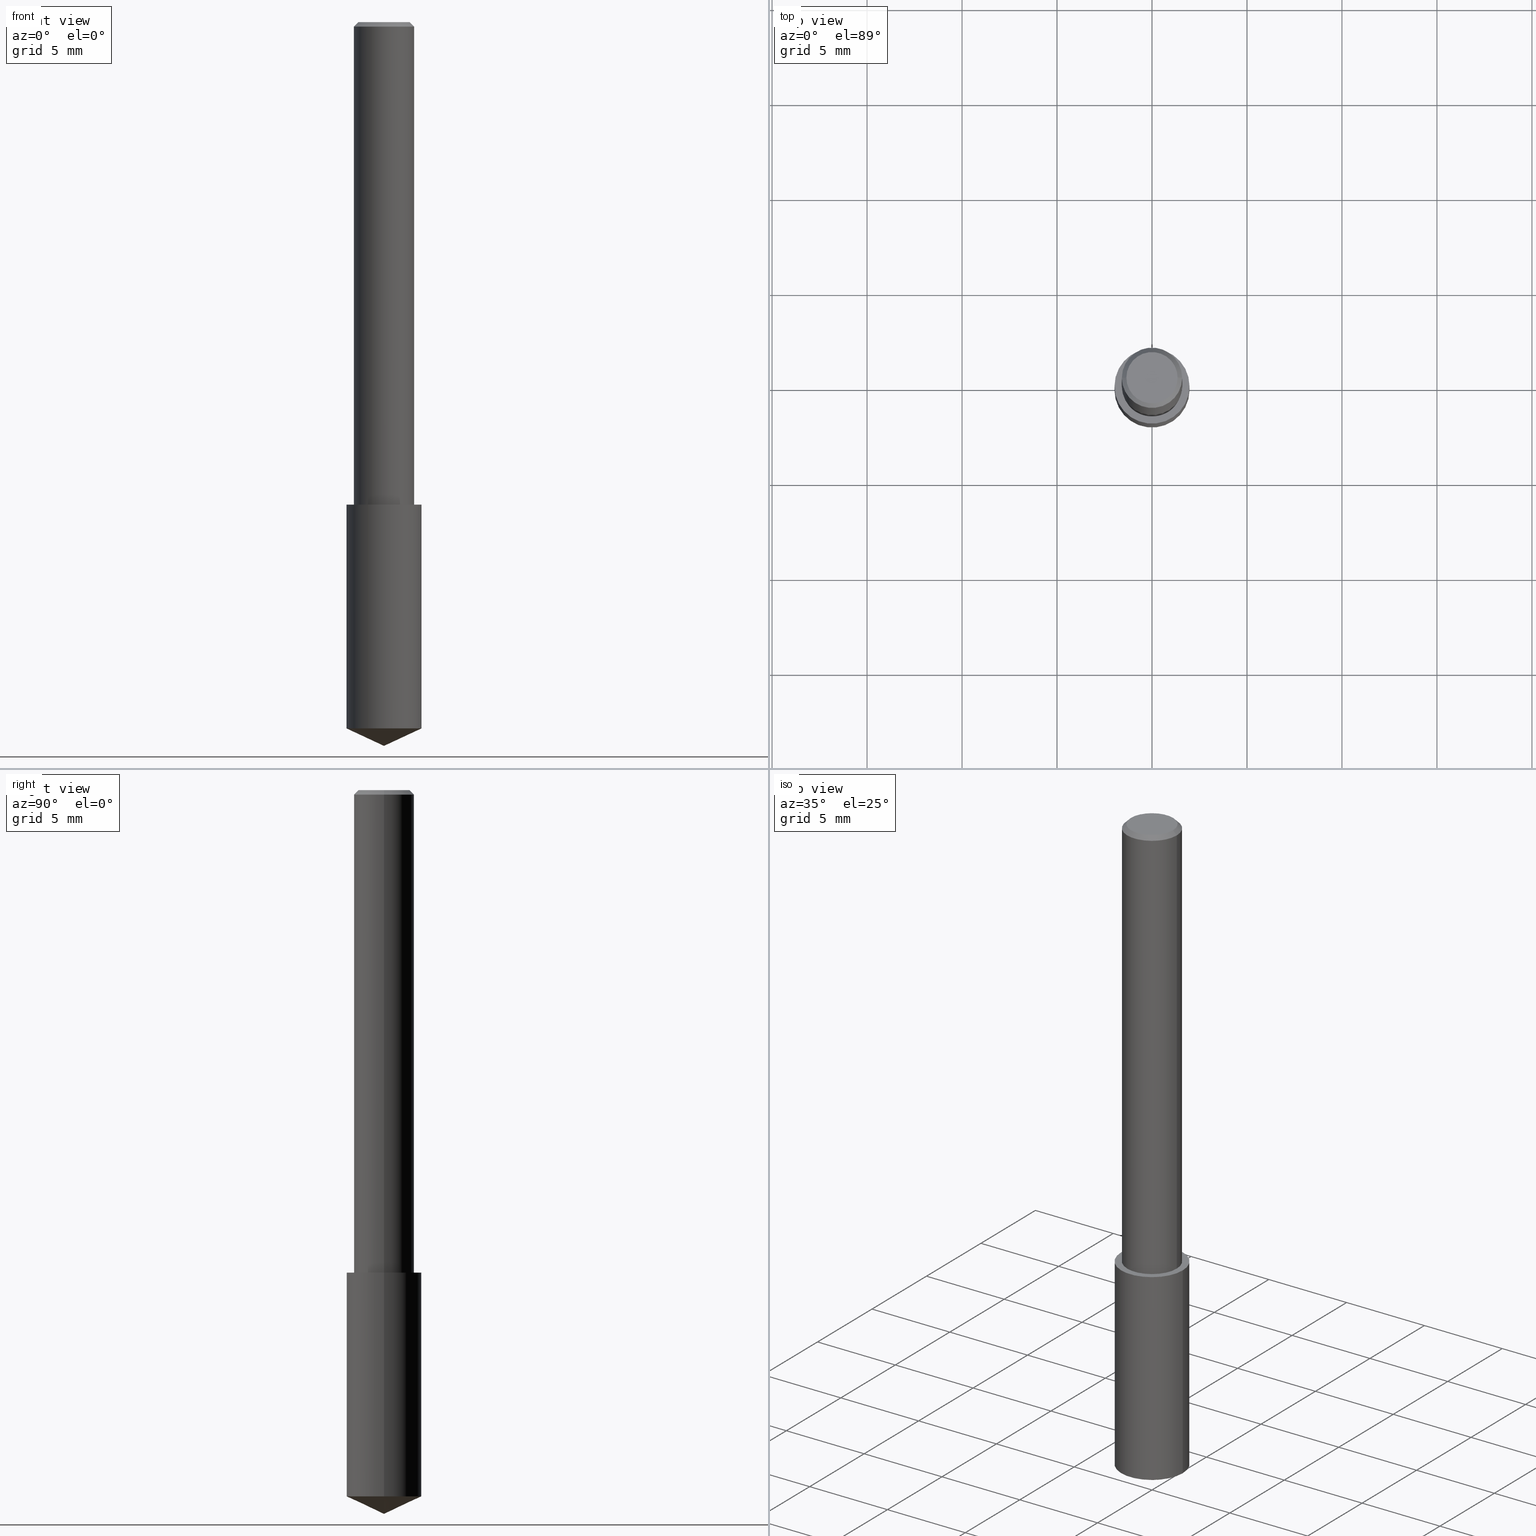
[diagram: canonical four-view strip — front | top / right | iso, engineering-drawing reading convention]
A machine part, canonical four-view strip (front | top / right | iso — engineering-drawing reading convention). The complete STEP part file that produces these views, byte-faithful:
ISO-10303-21;
HEADER;
FILE_DESCRIPTION (( 'STEP AP203' ),
    '1' );
FILE_NAME ('06093.STEP',
    '2024-04-30T18:20:10',
    ( '' ),
    ( '' ),
    'SwSTEP 2.0',
    'SolidWorks 2023',
    '' );
FILE_SCHEMA (( 'CONFIG_CONTROL_DESIGN' ));
ENDSEC;

DATA;
#1 = DIRECTION ( 'NONE',  ( -2.445468806185136597E-29, 3.491481338843145583E-15, 1.000000000000000000 ) ) ;
#2 = VERTEX_POINT ( 'NONE', #320 ) ;
#3 = DIRECTION ( 'NONE',  ( -2.445468806185136597E-29, 3.491481338843145583E-15, 1.000000000000000000 ) ) ;
#4 = CC_DESIGN_DATE_AND_TIME_ASSIGNMENT ( #259, #159, ( #295 ) ) ;
#5 = VECTOR ( 'NONE', #53, 39.37007874015748143 ) ;
#6 = APPROVAL_PERSON_ORGANIZATION ( #207, #228, #336 ) ;
#7 = CARTESIAN_POINT ( 'NONE',  ( 0.000000000000000000, 0.000000000000000000, 0.000000000000000000 ) ) ;
#8 = ORIENTED_EDGE ( 'NONE', *, *, #255, .T. ) ;
#9 = EDGE_LOOP ( 'NONE', ( #219, #215 ) ) ;
#10 = ORIENTED_EDGE ( 'NONE', *, *, #196, .F. ) ;
#11 = AXIS2_PLACEMENT_3D ( 'NONE', #206, #102, #314 ) ;
#12 = APPROVAL_DATE_TIME ( #276, #185 ) ;
#13 =( NAMED_UNIT ( * ) PLANE_ANGLE_UNIT ( ) SI_UNIT ( $, .RADIAN. ) );
#14 = PLANE ( 'NONE',  #42 ) ;
#15 = LENGTH_MEASURE_WITH_UNIT ( LENGTH_MEASURE( 0.02539999999999999897 ), #151 );
#16 = EDGE_LOOP ( 'NONE', ( #87, #261 ) ) ;
#17 = PERSON_AND_ORGANIZATION_ROLE ( 'design_owner' ) ;
#18 = DIRECTION ( 'NONE',  ( 1.000000000000000000, -6.982962677686261977E-15, 0.000000000000000000 ) ) ;
#19 = VERTEX_POINT ( 'NONE', #303 ) ;
#20 = CARTESIAN_POINT ( 'NONE',  ( 3.668203209277704895E-29, -5.237222008264718177E-15, -1.500000000000000222 ) ) ;
#21 = APPROVAL ( #97, 'UNSPECIFIED' ) ;
#22 = DIRECTION ( 'NONE',  ( -2.445468806185136877E-29, 3.491481338843145188E-15, 1.000000000000000000 ) ) ;
#23 = ORIENTED_EDGE ( 'NONE', *, *, #196, .T. ) ;
#24 = PERSON ( 'UNSPECIFIED', 'UNSPECIFIED', 'UNSPECIFIED', ('UNSPECIFIED'), ('UNSPECIFIED'), ('UNSPECIFIED') ) ;
#25 = PERSON_AND_ORGANIZATION ( #24, #127 ) ;
#26 = VECTOR ( 'NONE', #136, 39.37007874015748143 ) ;
#27 = LOCAL_TIME ( 14, 20, 10.00000000000000000, #231 ) ;
#28 = CARTESIAN_POINT ( 'NONE',  ( 0.06250000000000000000, -4.615137624123753937E-16, -0.009375000000000063838 ) ) ;
#29 = ORIENTED_EDGE ( 'NONE', *, *, #204, .T. ) ;
#30 = DIRECTION ( 'NONE',  ( 2.445468806185136597E-29, -3.491481338843145583E-15, -1.000000000000000000 ) ) ;
#31 = EDGE_CURVE ( 'NONE', #222, #270, #79, .T. ) ;
#32 = ORIENTED_EDGE ( 'NONE', *, *, #93, .T. ) ;
#33 = CARTESIAN_POINT ( 'NONE',  ( 0.07774999999999999967, -4.034406687033253308E-15, -1.000000000000000222 ) ) ;
#34 = CONICAL_SURFACE ( 'NONE', #11, 84.42940631927405093, 1.134464013796314674 ) ;
#35 = CARTESIAN_POINT ( 'NONE',  ( 2.445468806185137438E-29, -3.491481338843146371E-15, -1.000000000000000222 ) ) ;
#36 = ORIENTED_EDGE ( 'NONE', *, *, #244, .F. ) ;
#37 = EDGE_LOOP ( 'NONE', ( #103, #150, #316, #289 ) ) ;
#38 = ORIENTED_EDGE ( 'NONE', *, *, #246, .T. ) ;
#39 = APPROVAL_DATE_TIME ( #71, #21 ) ;
#40 = ADVANCED_FACE ( 'NONE', ( #82 ), #170, .T. ) ;
#41 = ADVANCED_FACE ( 'NONE', ( #192 ), #14, .F. ) ;
#42 = AXIS2_PLACEMENT_3D ( 'NONE', #116, #297, #59 ) ;
#43 = UNCERTAINTY_MEASURE_WITH_UNIT (LENGTH_MEASURE( 1.000000000000000082E-05 ), #277, 'distance_accuracy_value', 'NONE');
#44 = ORIENTED_EDGE ( 'NONE', *, *, #244, .T. ) ;
#45 = LINE ( 'NONE', #205, #126 ) ;
#46 = ADVANCED_FACE ( 'NONE', ( #62 ), #267, .T. ) ;
#47 = CALENDAR_DATE ( 2024, 30, 4 ) ;
#48 = PLANE ( 'NONE',  #248 ) ;
#49 = CONICAL_SURFACE ( 'NONE', #304, 0.06250000000000000000, 0.7853981633974450594 ) ;
#50 = EDGE_CURVE ( 'NONE', #299, #197, #232, .T. ) ;
#51 = CARTESIAN_POINT ( 'NONE',  ( -0.06250000000000012490, -1.318017778347335489E-15, -1.000000000000000222 ) ) ;
#52 = DIRECTION ( 'NONE',  ( 1.000000000000000000, -6.982962677686265922E-15, 4.876176775795935793E-29 ) ) ;
#53 = DIRECTION ( 'NONE',  ( -2.445468806185136877E-29, 3.491481338843145188E-15, 1.000000000000000000 ) ) ;
#54 = PERSON_AND_ORGANIZATION_ROLE ( 'creator' ) ;
#55 = DIRECTION ( 'NONE',  ( -2.445468806185136877E-29, 3.491481338843145188E-15, 1.000000000000000000 ) ) ;
#56 = EDGE_CURVE ( 'NONE', #218, #222, #302, .T. ) ;
#57 = CC_DESIGN_DATE_AND_TIME_ASSIGNMENT ( #96, #309, ( #273 ) ) ;
#58 = EDGE_LOOP ( 'NONE', ( #235, #251, #305 ) ) ;
#59 = DIRECTION ( 'NONE',  ( -1.000000000000000000, 6.982962677686265922E-15, -4.876176775795935793E-29 ) ) ;
#60 = MANIFOLD_SOLID_BREP ( 'Body-Move/Copy2[1]', #161 ) ;
#61 = AXIS2_PLACEMENT_3D ( 'NONE', #67, #331, #64 ) ;
#62 = FACE_OUTER_BOUND ( 'NONE', #315, .T. ) ;
#63 = CARTESIAN_POINT ( 'NONE',  ( 3.668203209277704895E-29, -5.237222008264718177E-15, -1.500000000000000222 ) ) ;
#64 = DIRECTION ( 'NONE',  ( 1.000000000000000000, -6.982962677686261977E-15, 0.000000000000000000 ) ) ;
#65 = ADVANCED_FACE ( 'NONE', ( #229 ), #313, .T. ) ;
#66 = APPROVAL_ROLE ( '' ) ;
#67 = CARTESIAN_POINT ( 'NONE',  ( 3.579541709581674461E-29, -5.110636884430960237E-15, -1.463744579578448946 ) ) ;
#68 = DIRECTION ( 'NONE',  ( -0.9063077870366501587, 7.915267918739016209E-15, 0.4226182617406989972 ) ) ;
#69 = AXIS2_PLACEMENT_3D ( 'NONE', #73, #72, #128 ) ;
#70 = PERSON_AND_ORGANIZATION ( #24, #127 ) ;
#71 = DATE_AND_TIME ( #198, #92 ) ;
#72 = DIRECTION ( 'NONE',  ( 2.438088387897960049E-29, -3.491481338843145188E-15, -1.000000000000000000 ) ) ;
#73 = CARTESIAN_POINT ( 'NONE',  ( -3.743544432386672853E-50, 5.344789307371238476E-36, 1.530808498934197599E-21 ) ) ;
#74 = CARTESIAN_POINT ( 'NONE',  ( 0.000000000000000000, 0.000000000000000000, 0.000000000000000000 ) ) ;
#75 = CIRCLE ( 'NONE', #269, 0.06250000000000000000 ) ;
#76 = PERSON_AND_ORGANIZATION ( #24, #127 ) ;
#77 = EDGE_CURVE ( 'NONE', #240, #137, #45, .T. ) ;
#78 = CALENDAR_DATE ( 2024, 30, 4 ) ;
#79 = CIRCLE ( 'NONE', #61, 0.07774999999999999967 ) ;
#80 = LOCAL_TIME ( 14, 20, 10.00000000000000000, #132 ) ;
#81 = CARTESIAN_POINT ( 'NONE',  ( 2.445468806185136877E-29, -3.491481338843145977E-15, -1.000000000000000222 ) ) ;
#82 = FACE_OUTER_BOUND ( 'NONE', #37, .T. ) ;
#83 = DIRECTION ( 'NONE',  ( 1.000000000000000000, -6.982962677686266711E-15, 0.000000000000000000 ) ) ;
#84 = EDGE_LOOP ( 'NONE', ( #236, #123, #38, #322 ) ) ;
#85 = DIRECTION ( 'NONE',  ( 1.000000000000000000, -6.982962677686266711E-15, 4.876176628004948512E-29 ) ) ;
#86 = VECTOR ( 'NONE', #68, 39.37007874015748143 ) ;
#87 = ORIENTED_EDGE ( 'NONE', *, *, #50, .F. ) ;
#88 = ADVANCED_FACE ( 'NONE', ( #285 ), #311, .T. ) ;
#89 = ORIENTED_EDGE ( 'NONE', *, *, #307, .F. ) ;
#90 = PERSON_AND_ORGANIZATION ( #24, #127 ) ;
#91 = APPLICATION_CONTEXT ( 'configuration controlled 3d designs of mechanical parts and assemblies' ) ;
#92 = LOCAL_TIME ( 14, 20, 10.00000000000000000, #121 ) ;
#93 = EDGE_CURVE ( 'NONE', #222, #2, #175, .T. ) ;
#94 = DIRECTION ( 'NONE',  ( -2.445468806185136597E-29, 3.491481338843145583E-15, 1.000000000000000000 ) ) ;
#95 = CARTESIAN_POINT ( 'NONE',  ( 0.000000000000000000, 0.000000000000000000, 0.000000000000000000 ) ) ;
#96 = DATE_AND_TIME ( #332, #155 ) ;
#97 = APPROVAL_STATUS ( 'not_yet_approved' ) ;
#98 = FACE_OUTER_BOUND ( 'NONE', #16, .T. ) ;
#99 = AXIS2_PLACEMENT_3D ( 'NONE', #117, #323, #195 ) ;
#100 = APPROVAL_PERSON_ORGANIZATION ( #275, #21, #274 ) ;
#101 = CC_DESIGN_PERSON_AND_ORGANIZATION_ASSIGNMENT ( #146, #284, ( #295 ) ) ;
#102 = DIRECTION ( 'NONE',  ( -2.445468806185136597E-29, 3.491481338843145583E-15, 1.000000000000000000 ) ) ;
#103 = ORIENTED_EDGE ( 'NONE', *, *, #93, .F. ) ;
#104 = LINE ( 'NONE', #290, #5 ) ;
#105 = CIRCLE ( 'NONE', #292, 0.05312499999999999861 ) ;
#106 = CONICAL_SURFACE ( 'NONE', #286, 0.06250000000000000000, 0.7853981633974450594 ) ;
#107 = APPROVAL_DATE_TIME ( #340, #228 ) ;
#108 = CARTESIAN_POINT ( 'NONE',  ( 0.06250000000000000000, -4.691678049070463404E-16, -0.009375000000000063838 ) ) ;
#109 = PERSON_AND_ORGANIZATION_ROLE ( 'design_supplier' ) ;
#110 = PRODUCT ( '06093', '06093', '', ( #306 ) ) ;
#111 = CARTESIAN_POINT ( 'NONE',  ( 2.292627005798581061E-31, -3.273263755165471417E-17, -0.009375000000000063838 ) ) ;
#112 = CARTESIAN_POINT ( 'NONE',  ( -0.07775000000000001354, -4.558189907377482443E-15, -1.463744579578448946 ) ) ;
#113 = AXIS2_PLACEMENT_3D ( 'NONE', #81, #339, #114 ) ;
#114 = DIRECTION ( 'NONE',  ( 1.000000000000000000, -6.982962677686266711E-15, 0.000000000000000000 ) ) ;
#115 = PRODUCT_RELATED_PRODUCT_CATEGORY ( 'detail', '', ( #110 ) ) ;
#116 = CARTESIAN_POINT ( 'NONE',  ( 3.672246464118877358E-29, -1.734665908833973445E-15, -1.000000000000000222 ) ) ;
#117 = CARTESIAN_POINT ( 'NONE',  ( 2.445468806185137438E-29, -3.491481338843146371E-15, -1.000000000000000222 ) ) ;
#118 = AXIS2_PLACEMENT_3D ( 'NONE', #95, #224, #333 ) ;
#119 = EDGE_LOOP ( 'NONE', ( #263, #143 ) ) ;
#120 = CC_DESIGN_PERSON_AND_ORGANIZATION_ASSIGNMENT ( #253, #249, ( #273 ) ) ;
#121 = COORDINATED_UNIVERSAL_TIME_OFFSET ( 5, 0, .BEHIND. ) ;
#122 = ORIENTED_EDGE ( 'NONE', *, *, #50, .T. ) ;
#123 = ORIENTED_EDGE ( 'NONE', *, *, #327, .T. ) ;
#124 = APPLICATION_PROTOCOL_DEFINITION ( 'international standard', 'config_control_design', 1994, #213 ) ;
#125 = CARTESIAN_POINT ( 'NONE',  ( -0.06250000000000000000, -1.318017778347336672E-15, -0.009375000000000063838 ) ) ;
#126 = VECTOR ( 'NONE', #177, 39.37007874015748143 ) ;
#127 = ORGANIZATION ( 'UNSPECIFIED', 'UNSPECIFIED', '' ) ;
#128 = DIRECTION ( 'NONE',  ( -1.000000000000000000, 6.982962677686265922E-15, -4.876176775795935793E-29 ) ) ;
#129 = FACE_OUTER_BOUND ( 'NONE', #338, .T. ) ;
#130 = DIRECTION ( 'NONE',  ( 0.9063077870366501587, -4.853149677051382734E-15, 0.4226182617406989972 ) ) ;
#131 = APPROVAL_STATUS ( 'not_yet_approved' ) ;
#132 = COORDINATED_UNIVERSAL_TIME_OFFSET ( 5, 0, .BEHIND. ) ;
#133 = DIRECTION ( 'NONE',  ( -2.445468806185136597E-29, 3.491481338843145583E-15, 1.000000000000000000 ) ) ;
#134 = CARTESIAN_POINT ( 'NONE',  ( 0.06250000000000006939, -4.364351673553921624E-16, 3.047610484872463374E-30 ) ) ;
#135 = LOCAL_TIME ( 14, 20, 10.00000000000000000, #283 ) ;
#136 = DIRECTION ( 'NONE',  ( 0.7071067811865452413, -7.319954787623248157E-15, -0.7071067811865497932 ) ) ;
#137 = VERTEX_POINT ( 'NONE', #125 ) ;
#138 = CYLINDRICAL_SURFACE ( 'NONE', #254, 0.06250000000000006939 ) ;
#139 = AXIS2_PLACEMENT_3D ( 'NONE', #158, #258, #326 ) ;
#140 = DIRECTION ( 'NONE',  ( -2.445468806185136597E-29, 3.491481338843145583E-15, 1.000000000000000000 ) ) ;
#141 = ORIENTED_EDGE ( 'NONE', *, *, #56, .T. ) ;
#142 = ADVANCED_FACE ( 'NONE', ( #279 ), #106, .T. ) ;
#143 = ORIENTED_EDGE ( 'NONE', *, *, #330, .T. ) ;
#144 = AXIS2_PLACEMENT_3D ( 'NONE', #214, #293, #83 ) ;
#145 = CARTESIAN_POINT ( 'NONE',  ( 2.445468806185137438E-29, -3.491481338843146371E-15, -1.000000000000000222 ) ) ;
#146 = PERSON_AND_ORGANIZATION ( #24, #127 ) ;
#147 = COORDINATED_UNIVERSAL_TIME_OFFSET ( 5, 0, .BEHIND. ) ;
#148 = ADVANCED_FACE ( 'NONE', ( #288 ), #281, .F. ) ;
#149 = CC_DESIGN_APPROVAL ( #228, ( #262 ) ) ;
#150 = ORIENTED_EDGE ( 'NONE', *, *, #31, .T. ) ;
#151 =( LENGTH_UNIT ( ) NAMED_UNIT ( * ) SI_UNIT ( $, .METRE. ) );
#152 = CARTESIAN_POINT ( 'NONE',  ( 2.445468806185137438E-29, -3.491481338843146371E-15, -1.000000000000000222 ) ) ;
#153 = ADVANCED_FACE ( 'NONE', ( #129 ), #34, .T. ) ;
#154 = VECTOR ( 'NONE', #130, 39.37007874015748143 ) ;
#155 = LOCAL_TIME ( 14, 20, 10.00000000000000000, #147 ) ;
#156 = DIRECTION ( 'NONE',  ( 1.000000000000000000, -6.982962677686266711E-15, 4.876176628004948512E-29 ) ) ;
#157 = CARTESIAN_POINT ( 'NONE',  ( 3.579541709581674461E-29, -5.110636884430960237E-15, -1.463744579578448946 ) ) ;
#158 = CARTESIAN_POINT ( 'NONE',  ( 2.445468806185137438E-29, -3.491481338843146371E-15, -1.000000000000000222 ) ) ;
#159 = DATE_TIME_ROLE ( 'creation_date' ) ;
#160 = LINE ( 'NONE', #28, #26 ) ;
#161 = CLOSED_SHELL ( 'NONE', ( #46, #153, #65, #40, #41 ) ) ;
#162 = CC_DESIGN_APPROVAL ( #21, ( #295 ) ) ;
#163 = LINE ( 'NONE', #134, #335 ) ;
#164 = ORIENTED_EDGE ( 'NONE', *, *, #77, .F. ) ;
#165 = CARTESIAN_POINT ( 'NONE',  ( 3.668203209277704895E-29, -5.237222008264718177E-15, -1.500000000000000222 ) ) ;
#166 = ORIENTED_EDGE ( 'NONE', *, *, #210, .T. ) ;
#167 = DIRECTION ( 'NONE',  ( 1.000000000000000000, -6.982962677686266711E-15, 0.000000000000000000 ) ) ;
#168 = ADVANCED_BREP_SHAPE_REPRESENTATION ( '06093', ( #60, #280, #118 ), #189 ) ;
#169 = ORIENTED_EDGE ( 'NONE', *, *, #255, .F. ) ;
#170 = CYLINDRICAL_SURFACE ( 'NONE', #194, 0.07774999999999999967 ) ;
#171 = CIRCLE ( 'NONE', #144, 0.06250000000000000000 ) ;
#172 = CC_DESIGN_PERSON_AND_ORGANIZATION_ASSIGNMENT ( #25, #109, ( #262 ) ) ;
#173 = ORIENTED_EDGE ( 'NONE', *, *, #242, .F. ) ;
#174 = AXIS2_PLACEMENT_3D ( 'NONE', #157, #133, #18 ) ;
#175 = LINE ( 'NONE', #334, #221 ) ;
#176 = APPLICATION_PROTOCOL_DEFINITION ( 'international standard', 'config_control_design', 1994, #91 ) ;
#177 = DIRECTION ( 'NONE',  ( -0.7071067811865452413, 2.468850131082233000E-15, -0.7071067811865497932 ) ) ;
#178 = APPROVAL_STATUS ( 'not_yet_approved' ) ;
#179 = DIMENSIONAL_EXPONENTS ( 1.000000000000000000, 0.000000000000000000, 0.000000000000000000, 0.000000000000000000, 0.000000000000000000, 0.000000000000000000, 0.000000000000000000 ) ;
#180 = CALENDAR_DATE ( 2024, 30, 4 ) ;
#181 = DIRECTION ( 'NONE',  ( -1.000000000000000000, 6.982962677686266711E-15, 0.000000000000000000 ) ) ;
#182 = AXIS2_PLACEMENT_3D ( 'NONE', #268, #216, #85 ) ;
#183 = CC_DESIGN_APPROVAL ( #185, ( #273 ) ) ;
#184 = DIRECTION ( 'NONE',  ( 2.445468806185136597E-29, -3.491481338843145583E-15, -1.000000000000000000 ) ) ;
#185 = APPROVAL ( #178, 'UNSPECIFIED' ) ;
#186 = DIRECTION ( 'NONE',  ( 1.000000000000000000, -6.982962677686266711E-15, 0.000000000000000000 ) ) ;
#187 = ADVANCED_FACE ( 'NONE', ( #98 ), #48, .F. ) ;
#188 = AXIS2_PLACEMENT_3D ( 'NONE', #74, #310, #225 ) ;
#189 =( GEOMETRIC_REPRESENTATION_CONTEXT ( 3 ) GLOBAL_UNCERTAINTY_ASSIGNED_CONTEXT ( ( #43 ) ) GLOBAL_UNIT_ASSIGNED_CONTEXT ( ( #277, #13, #245 ) ) REPRESENTATION_CONTEXT ( 'NONE', 'WORKASPACE' ) );
#190 = FACE_OUTER_BOUND ( 'NONE', #325, .T. ) ;
#191 = LINE ( 'NONE', #317, #260 ) ;
#192 = FACE_OUTER_BOUND ( 'NONE', #9, .T. ) ;
#193 = ORIENTED_EDGE ( 'NONE', *, *, #246, .F. ) ;
#194 = AXIS2_PLACEMENT_3D ( 'NONE', #145, #94, #243 ) ;
#195 = DIRECTION ( 'NONE',  ( 1.000000000000000000, -6.982962677686264344E-15, 0.000000000000000000 ) ) ;
#196 = EDGE_CURVE ( 'NONE', #270, #222, #247, .T. ) ;
#197 = VERTEX_POINT ( 'NONE', #51 ) ;
#198 = CALENDAR_DATE ( 2024, 30, 4 ) ;
#199 = CIRCLE ( 'NONE', #139, 0.06250000000000012490 ) ;
#200 = CC_DESIGN_SECURITY_CLASSIFICATION ( #273, ( #262 ) ) ;
#201 = EDGE_CURVE ( 'NONE', #240, #19, #105, .T. ) ;
#202 = ORIENTED_EDGE ( 'NONE', *, *, #330, .F. ) ;
#203 = AXIS2_PLACEMENT_3D ( 'NONE', #298, #230, #186 ) ;
#204 = EDGE_CURVE ( 'NONE', #197, #137, #191, .T. ) ;
#205 = CARTESIAN_POINT ( 'NONE',  ( -0.06250000000000000000, 4.037025298037369984E-16, -0.009375000000000063838 ) ) ;
#206 = CARTESIAN_POINT ( 'NONE',  ( -9.261009624683002666E-28, 1.322226732217803884E-13, 37.87007874015748143 ) ) ;
#207 = PERSON_AND_ORGANIZATION ( #24, #127 ) ;
#208 = CLOSED_SHELL ( 'NONE', ( #291, #282, #187, #88, #142, #148 ) ) ;
#209 = DIRECTION ( 'NONE',  ( 1.000000000000000000, -6.982962677686266711E-15, 0.000000000000000000 ) ) ;
#210 = EDGE_CURVE ( 'NONE', #137, #265, #75, .T. ) ;
#211 = DIRECTION ( 'NONE',  ( -2.445468806185136597E-29, 3.491481338843145583E-15, 1.000000000000000000 ) ) ;
#212 = SECURITY_CLASSIFICATION_LEVEL ( 'unclassified' ) ;
#213 = APPLICATION_CONTEXT ( 'configuration controlled 3d designs of mechanical parts and assemblies' ) ;
#214 = CARTESIAN_POINT ( 'NONE',  ( 2.292627005798581061E-31, -3.273263755165471417E-17, -0.009375000000000063838 ) ) ;
#215 = ORIENTED_EDGE ( 'NONE', *, *, #301, .T. ) ;
#216 = DIRECTION ( 'NONE',  ( -2.445468806185136597E-29, 3.491481338843145583E-15, 1.000000000000000000 ) ) ;
#217 = CC_DESIGN_PERSON_AND_ORGANIZATION_ASSIGNMENT ( #90, #17, ( #110 ) ) ;
#218 = VERTEX_POINT ( 'NONE', #165 ) ;
#219 = ORIENTED_EDGE ( 'NONE', *, *, #242, .T. ) ;
#220 = SHAPE_DEFINITION_REPRESENTATION ( #328, #168 ) ;
#221 = VECTOR ( 'NONE', #22, 39.37007874015748143 ) ;
#222 = VERTEX_POINT ( 'NONE', #112 ) ;
#223 = CC_DESIGN_PERSON_AND_ORGANIZATION_ASSIGNMENT ( #76, #54, ( #262 ) ) ;
#224 = DIRECTION ( 'NONE',  ( 0.000000000000000000, 0.000000000000000000, 1.000000000000000000 ) ) ;
#225 = DIRECTION ( 'NONE',  ( 1.000000000000000000, -6.982962677686266711E-15, 4.876176775795935793E-29 ) ) ;
#226 = CIRCLE ( 'NONE', #203, 0.07774999999999999967 ) ;
#227 = DIRECTION ( 'NONE',  ( 1.000000000000000000, -6.982962677686266711E-15, 0.000000000000000000 ) ) ;
#228 = APPROVAL ( #131, 'UNSPECIFIED' ) ;
#229 = FACE_OUTER_BOUND ( 'NONE', #58, .T. ) ;
#230 = DIRECTION ( 'NONE',  ( -2.445468806185136597E-29, 3.491481338843145583E-15, 1.000000000000000000 ) ) ;
#231 = COORDINATED_UNIVERSAL_TIME_OFFSET ( 5, 0, .BEHIND. ) ;
#232 = CIRCLE ( 'NONE', #99, 0.06250000000000012490 ) ;
#233 = CARTESIAN_POINT ( 'NONE',  ( -7.487088864773345706E-50, 1.068957861474247695E-35, 3.061616997868395197E-21 ) ) ;
#234 = ORIENTED_EDGE ( 'NONE', *, *, #201, .F. ) ;
#235 = ORIENTED_EDGE ( 'NONE', *, *, #56, .F. ) ;
#236 = ORIENTED_EDGE ( 'NONE', *, *, #204, .F. ) ;
#237 = DIRECTION ( 'NONE',  ( -1.000000000000000000, 6.982962677686266711E-15, 0.000000000000000000 ) ) ;
#238 = AXIS2_PLACEMENT_3D ( 'NONE', #35, #140, #167 ) ;
#239 = EDGE_LOOP ( 'NONE', ( #122, #29, #36, #193 ) ) ;
#240 = VERTEX_POINT ( 'NONE', #266 ) ;
#241 = VERTEX_POINT ( 'NONE', #33 ) ;
#242 = EDGE_CURVE ( 'NONE', #241, #2, #226, .T. ) ;
#243 = DIRECTION ( 'NONE',  ( 1.000000000000000000, -6.982962677686266711E-15, 0.000000000000000000 ) ) ;
#244 = EDGE_CURVE ( 'NONE', #265, #137, #171, .T. ) ;
#245 =( NAMED_UNIT ( * ) SI_UNIT ( $, .STERADIAN. ) SOLID_ANGLE_UNIT ( ) );
#246 = EDGE_CURVE ( 'NONE', #299, #265, #163, .T. ) ;
#247 = CIRCLE ( 'NONE', #174, 0.07774999999999999967 ) ;
#248 = AXIS2_PLACEMENT_3D ( 'NONE', #152, #252, #52 ) ;
#249 = PERSON_AND_ORGANIZATION_ROLE ( 'classification_officer' ) ;
#250 = DESIGN_CONTEXT ( 'detailed design', #213, 'design' ) ;
#251 = ORIENTED_EDGE ( 'NONE', *, *, #307, .T. ) ;
#252 = DIRECTION ( 'NONE',  ( -2.438088387897960049E-29, 3.491481338843145188E-15, 1.000000000000000000 ) ) ;
#253 = PERSON_AND_ORGANIZATION ( #24, #127 ) ;
#254 = AXIS2_PLACEMENT_3D ( 'NONE', #7, #3, #256 ) ;
#255 = EDGE_CURVE ( 'NONE', #19, #265, #160, .T. ) ;
#256 = DIRECTION ( 'NONE',  ( 1.000000000000000000, -6.982962677686266711E-15, 4.876176775795935793E-29 ) ) ;
#257 = CARTESIAN_POINT ( 'NONE',  ( 2.292627005798581061E-31, -3.273263755165471417E-17, -0.009375000000000063838 ) ) ;
#258 = DIRECTION ( 'NONE',  ( -2.445468806185136597E-29, 3.491481338843145583E-15, 1.000000000000000000 ) ) ;
#259 = DATE_AND_TIME ( #180, #80 ) ;
#260 = VECTOR ( 'NONE', #318, 39.37007874015748143 ) ;
#261 = ORIENTED_EDGE ( 'NONE', *, *, #327, .F. ) ;
#262 = PRODUCT_DEFINITION_FORMATION_WITH_SPECIFIED_SOURCE ( 'ANY', '', #110, .NOT_KNOWN. ) ;
#263 = ORIENTED_EDGE ( 'NONE', *, *, #201, .T. ) ;
#264 = FACE_OUTER_BOUND ( 'NONE', #239, .T. ) ;
#265 = VERTEX_POINT ( 'NONE', #108 ) ;
#266 = CARTESIAN_POINT ( 'NONE',  ( -0.05312499999999999861, 3.873362110279099094E-16, 3.061616995216862494E-21 ) ) ;
#267 = CYLINDRICAL_SURFACE ( 'NONE', #238, 0.07774999999999999967 ) ;
#268 = CARTESIAN_POINT ( 'NONE',  ( -7.487088864773345706E-50, 1.068957861474247695E-35, 3.061616997868395197E-21 ) ) ;
#269 = AXIS2_PLACEMENT_3D ( 'NONE', #296, #211, #209 ) ;
#270 = VERTEX_POINT ( 'NONE', #294 ) ;
#271 = ORIENTED_EDGE ( 'NONE', *, *, #312, .F. ) ;
#272 = EDGE_LOOP ( 'NONE', ( #169, #234, #278, #166 ) ) ;
#273 = SECURITY_CLASSIFICATION ( '', '', #212 ) ;
#274 = APPROVAL_ROLE ( '' ) ;
#275 = PERSON_AND_ORGANIZATION ( #24, #127 ) ;
#276 = DATE_AND_TIME ( #47, #135 ) ;
#277 =( CONVERSION_BASED_UNIT ( 'INCH', #15 ) LENGTH_UNIT ( ) NAMED_UNIT ( #179 ) );
#278 = ORIENTED_EDGE ( 'NONE', *, *, #77, .T. ) ;
#279 = FACE_OUTER_BOUND ( 'NONE', #272, .T. ) ;
#280 = MANIFOLD_SOLID_BREP ( 'Body-Move/Copy2[2]', #208 ) ;
#281 = PLANE ( 'NONE',  #69 ) ;
#282 = ADVANCED_FACE ( 'NONE', ( #264 ), #138, .T. ) ;
#283 = COORDINATED_UNIVERSAL_TIME_OFFSET ( 5, 0, .BEHIND. ) ;
#284 = PERSON_AND_ORGANIZATION_ROLE ( 'creator' ) ;
#285 = FACE_OUTER_BOUND ( 'NONE', #84, .T. ) ;
#286 = AXIS2_PLACEMENT_3D ( 'NONE', #257, #184, #181 ) ;
#287 = APPROVAL_PERSON_ORGANIZATION ( #70, #185, #66 ) ;
#288 = FACE_OUTER_BOUND ( 'NONE', #119, .T. ) ;
#289 = ORIENTED_EDGE ( 'NONE', *, *, #301, .F. ) ;
#290 = CARTESIAN_POINT ( 'NONE',  ( 0.07774999999999999967, -4.034406687033254097E-15, -1.000000000000000222 ) ) ;
#291 = ADVANCED_FACE ( 'NONE', ( #190 ), #49, .T. ) ;
#292 = AXIS2_PLACEMENT_3D ( 'NONE', #233, #1, #156 ) ;
#293 = DIRECTION ( 'NONE',  ( -2.445468806185136597E-29, 3.491481338843145583E-15, 1.000000000000000000 ) ) ;
#294 = CARTESIAN_POINT ( 'NONE',  ( 0.07775000000000001354, -5.653562232621068357E-15, -1.463744579578448946 ) ) ;
#295 = PRODUCT_DEFINITION ( 'UNKNOWN', '', #262, #250 ) ;
#296 = CARTESIAN_POINT ( 'NONE',  ( 2.292627005798581061E-31, -3.273263755165471417E-17, -0.009375000000000063838 ) ) ;
#297 = DIRECTION ( 'NONE',  ( 2.438088387897960049E-29, -3.491481338843145188E-15, -1.000000000000000000 ) ) ;
#298 = CARTESIAN_POINT ( 'NONE',  ( 2.445468806185136877E-29, -3.491481338843145977E-15, -1.000000000000000222 ) ) ;
#299 = VERTEX_POINT ( 'NONE', #319 ) ;
#300 = CIRCLE ( 'NONE', #113, 0.07774999999999999967 ) ;
#301 = EDGE_CURVE ( 'NONE', #2, #241, #300, .T. ) ;
#302 = LINE ( 'NONE', #63, #86 ) ;
#303 = CARTESIAN_POINT ( 'NONE',  ( 0.05312499999999999861, -4.129888592719939842E-16, 3.061617000609493422E-21 ) ) ;
#304 = AXIS2_PLACEMENT_3D ( 'NONE', #111, #30, #237 ) ;
#305 = ORIENTED_EDGE ( 'NONE', *, *, #31, .F. ) ;
#306 = MECHANICAL_CONTEXT ( 'NONE', #91, 'mechanical' ) ;
#307 = EDGE_CURVE ( 'NONE', #218, #270, #321, .T. ) ;
#308 = DIRECTION ( 'NONE',  ( -2.445468806185136597E-29, 3.491481338843145583E-15, 1.000000000000000000 ) ) ;
#309 = DATE_TIME_ROLE ( 'classification_date' ) ;
#310 = DIRECTION ( 'NONE',  ( -2.445468806185136597E-29, 3.491481338843145583E-15, 1.000000000000000000 ) ) ;
#311 = CYLINDRICAL_SURFACE ( 'NONE', #188, 0.06250000000000006939 ) ;
#312 = EDGE_CURVE ( 'NONE', #270, #241, #104, .T. ) ;
#313 = CONICAL_SURFACE ( 'NONE', #324, 84.42940631927405093, 1.134464013796314674 ) ;
#314 = DIRECTION ( 'NONE',  ( 1.000000000000000000, -6.982962677686266711E-15, 0.000000000000000000 ) ) ;
#315 = EDGE_LOOP ( 'NONE', ( #23, #32, #173, #271 ) ) ;
#316 = ORIENTED_EDGE ( 'NONE', *, *, #312, .T. ) ;
#317 = CARTESIAN_POINT ( 'NONE',  ( -0.06250000000000006939, 4.440892098500631092E-16, -3.074334431409319267E-30 ) ) ;
#318 = DIRECTION ( 'NONE',  ( -2.445468806185136877E-29, 3.491481338843145188E-15, 1.000000000000000000 ) ) ;
#319 = CARTESIAN_POINT ( 'NONE',  ( 0.06250000000000012490, -3.927916506198539224E-15, -1.000000000000000222 ) ) ;
#320 = CARTESIAN_POINT ( 'NONE',  ( -0.07774999999999999967, -3.748612134583574919E-15, -1.000000000000000222 ) ) ;
#321 = LINE ( 'NONE', #20, #154 ) ;
#322 = ORIENTED_EDGE ( 'NONE', *, *, #210, .F. ) ;
#323 = DIRECTION ( 'NONE',  ( -2.445468806185136597E-29, 3.491481338843145583E-15, 1.000000000000000000 ) ) ;
#324 = AXIS2_PLACEMENT_3D ( 'NONE', #337, #308, #227 ) ;
#325 = EDGE_LOOP ( 'NONE', ( #202, #8, #44, #164 ) ) ;
#326 = DIRECTION ( 'NONE',  ( 1.000000000000000000, -6.982962677686264344E-15, 0.000000000000000000 ) ) ;
#327 = EDGE_CURVE ( 'NONE', #197, #299, #199, .T. ) ;
#328 = PRODUCT_DEFINITION_SHAPE ( 'NONE', 'NONE',  #295 ) ;
#329 = CIRCLE ( 'NONE', #182, 0.05312499999999999861 ) ;
#330 = EDGE_CURVE ( 'NONE', #19, #240, #329, .T. ) ;
#331 = DIRECTION ( 'NONE',  ( -2.445468806185136597E-29, 3.491481338843145583E-15, 1.000000000000000000 ) ) ;
#332 = CALENDAR_DATE ( 2024, 30, 4 ) ;
#333 = DIRECTION ( 'NONE',  ( 1.000000000000000000, 0.000000000000000000, 0.000000000000000000 ) ) ;
#334 = CARTESIAN_POINT ( 'NONE',  ( -0.07774999999999999967, -2.939034361789668578E-15, -1.000000000000000222 ) ) ;
#335 = VECTOR ( 'NONE', #55, 39.37007874015748143 ) ;
#336 = APPROVAL_ROLE ( '' ) ;
#337 = CARTESIAN_POINT ( 'NONE',  ( -9.261009624683002666E-28, 1.322226732217803884E-13, 37.87007874015748143 ) ) ;
#338 = EDGE_LOOP ( 'NONE', ( #89, #141, #10 ) ) ;
#339 = DIRECTION ( 'NONE',  ( -2.445468806185136597E-29, 3.491481338843145583E-15, 1.000000000000000000 ) ) ;
#340 = DATE_AND_TIME ( #78, #27 ) ;
ENDSEC;
END-ISO-10303-21;
